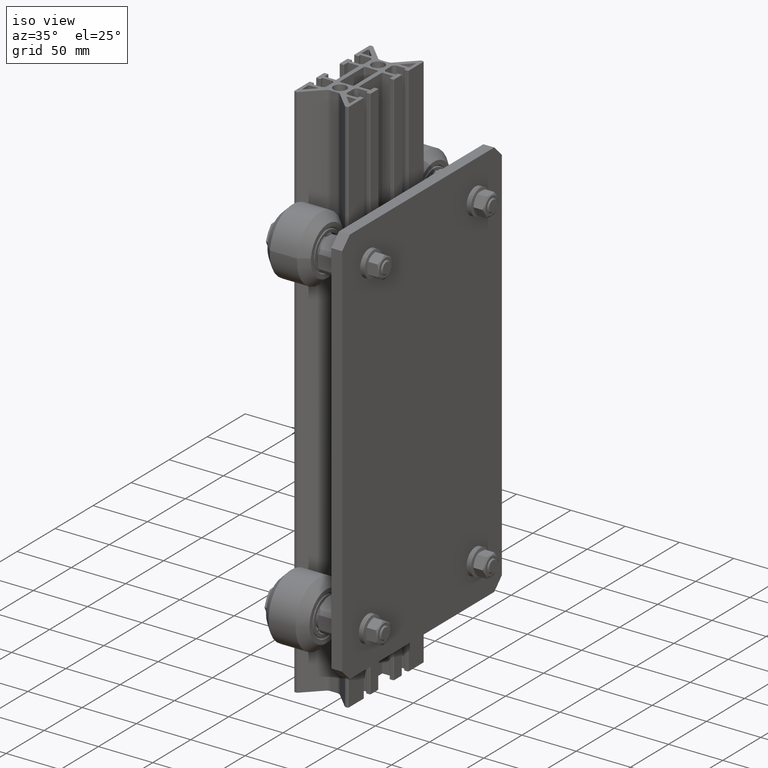
[diagram: clean part render]
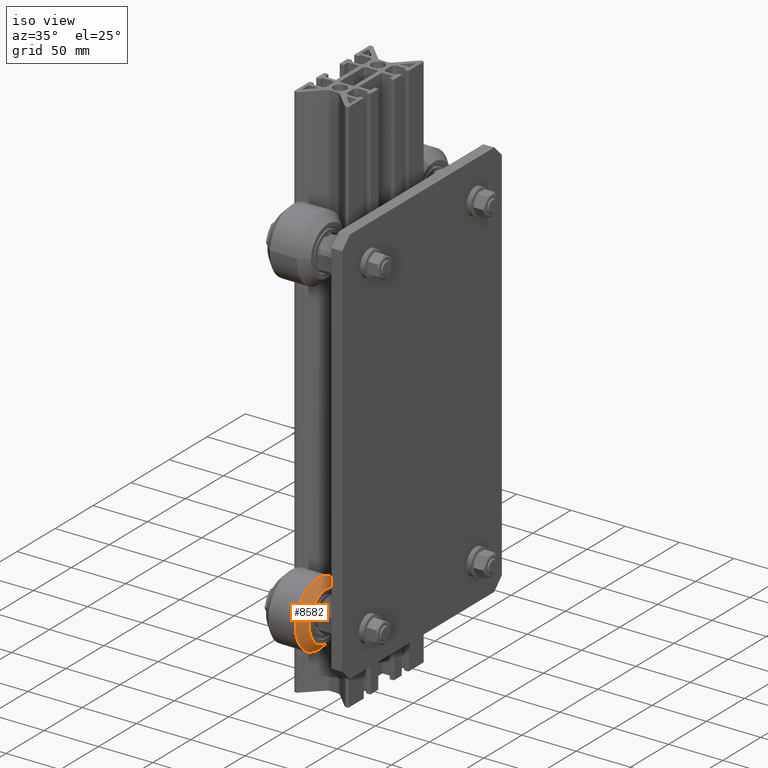
[diagram: same view with one face highlighted and labeled with its STEP entity id]
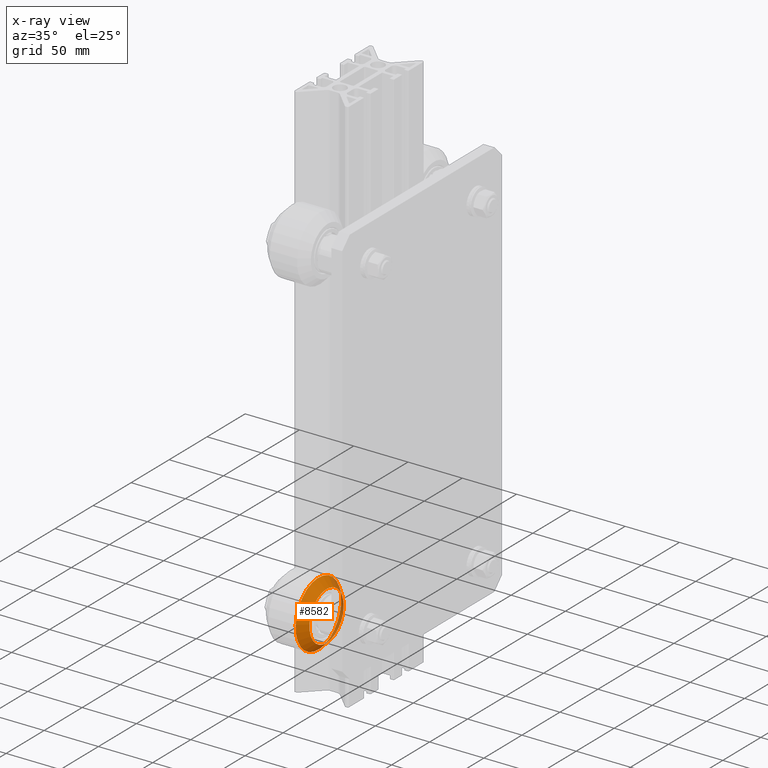
[diagram: x-ray of the same camera — body ghosted, the highlighted face saturated]
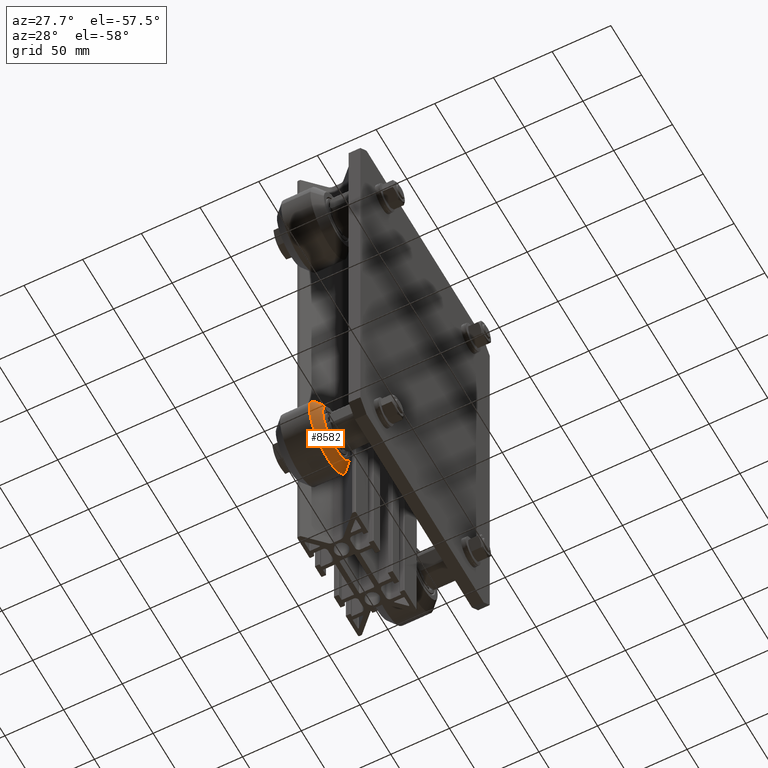
[diagram: same view with one face highlighted and labeled with its STEP entity id]
A machine part, iso view. The second image highlights one B-rep face of the part: STEP entity #8582.
The next image is the same camera in x-ray: the body ghosted, the highlighted face saturated — about 13% of this face is hidden behind the body in this view.
A second angle (auxiliary view) of the same face is appended — the face is thin or edge-on in the first view.
In plain terms, the highlighted conical surface has half-angle 45 deg.
Its self-contained STEP definition (entity closure, byte-faithful):
#277=CONICAL_SURFACE('',#9559,26.25,0.785398163397448);
#824=FACE_OUTER_BOUND('',#1318,.T.);
#1318=EDGE_LOOP('',(#6636,#6637,#6638,#6639));
#1770=CIRCLE('',#9548,22.5);
#1777=CIRCLE('',#9560,30.);
#2390=LINE('',#14095,#3024);
#3024=VECTOR('',#11285,26.25);
#3672=VERTEX_POINT('',#14071);
#3679=VERTEX_POINT('',#14093);
#4740=EDGE_CURVE('',#3672,#3672,#1770,.T.);
#4750=EDGE_CURVE('',#3679,#3679,#1777,.T.);
#4751=EDGE_CURVE('',#3679,#3672,#2390,.T.);
#6636=ORIENTED_EDGE('',*,*,#4750,.F.);
#6637=ORIENTED_EDGE('',*,*,#4751,.T.);
#6638=ORIENTED_EDGE('',*,*,#4740,.T.);
#6639=ORIENTED_EDGE('',*,*,#4751,.F.);
#8582=ADVANCED_FACE('',(#824),#277,.T.);
#9548=AXIS2_PLACEMENT_3D('',#14072,#11256,#11257);
#9559=AXIS2_PLACEMENT_3D('',#14092,#11281,#11282);
#9560=AXIS2_PLACEMENT_3D('',#14094,#11283,#11284);
#11256=DIRECTION('center_axis',(1.,0.,0.));
#11257=DIRECTION('ref_axis',(0.,1.,0.));
#11281=DIRECTION('center_axis',(1.,0.,0.));
#11282=DIRECTION('ref_axis',(0.,1.,0.));
#11283=DIRECTION('center_axis',(1.,0.,0.));
#11284=DIRECTION('ref_axis',(0.,1.,0.));
#11285=DIRECTION('',(-0.707106781186548,0.707106781186548,8.65956056235493E-17));
#14071=CARTESIAN_POINT('',(-20.,-22.5,-2.75545529808154E-15));
#14072=CARTESIAN_POINT('Origin',(-20.,0.,0.));
#14092=CARTESIAN_POINT('Origin',(-16.25,0.,0.));
#14093=CARTESIAN_POINT('',(-12.5,-30.,-3.67394039744206E-15));
#14094=CARTESIAN_POINT('Origin',(-12.5,0.,0.));
#14095=CARTESIAN_POINT('',(-16.25,-26.25,-3.2146978477618E-15));